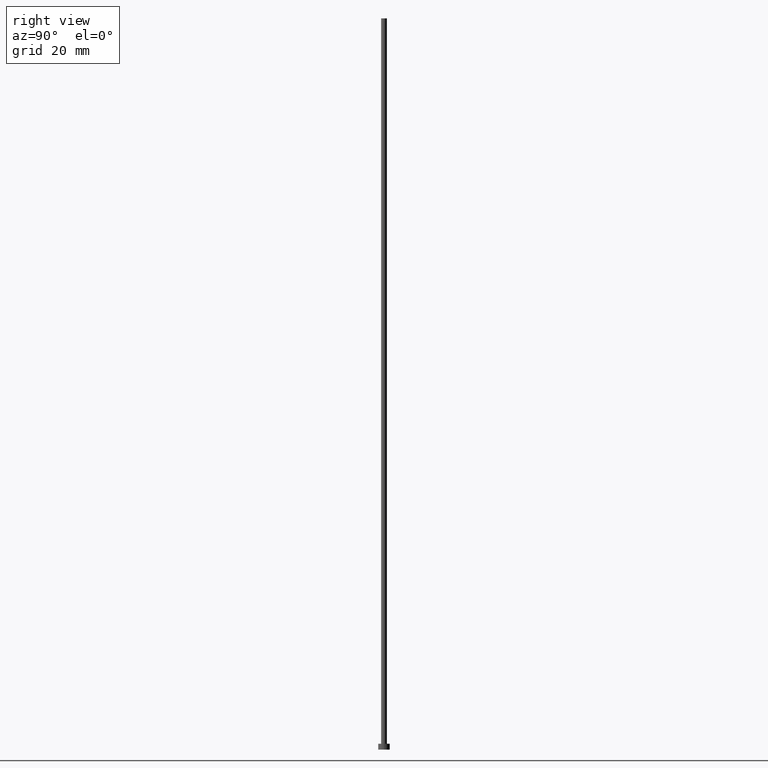
[diagram: clean part render]
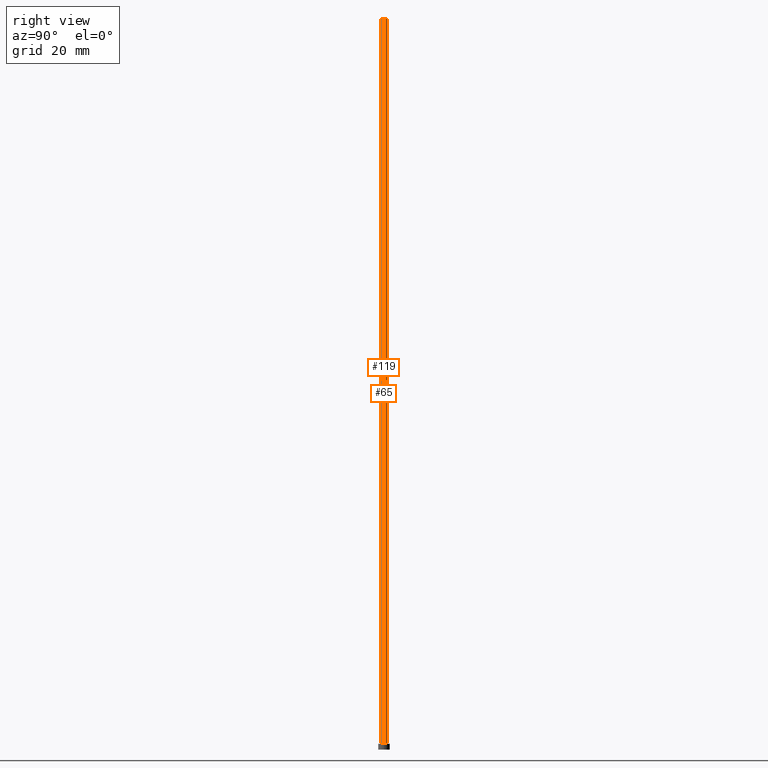
[diagram: same view with one multi-face feature highlighted, each face labeled with its STEP entity id]
A machine part, right view. The highlighted faces form ONE feature: a constant-radius fillet chain: 2 tangent blend faces with common blend radius 1 mm. The faces share edges in the B-rep.
Their STEP definitions:
[1] entity #65 (Cylinder):
#1 = CARTESIAN_POINT ( 'NONE',  ( 0.000000000000000000, 0.000000000000000000, 250.0000000000000000 ) ) ;
#6 = CIRCLE ( 'NONE', #130, 1.000000000000000000 ) ;
#14 = ORIENTED_EDGE ( 'NONE', *, *, #84, .T. ) ;
#17 = CYLINDRICAL_SURFACE ( 'NONE', #57, 1.000000000000000000 ) ;
#30 = ORIENTED_EDGE ( 'NONE', *, *, #235, .F. ) ;
#33 = DIRECTION ( 'NONE',  ( 1.000000000000000000, 0.000000000000000000, 0.000000000000000000 ) ) ;
#36 = DIRECTION ( 'NONE',  ( -0.000000000000000000, -0.000000000000000000, -1.000000000000000000 ) ) ;
#44 = DIRECTION ( 'NONE',  ( 1.000000000000000000, 0.000000000000000000, 0.000000000000000000 ) ) ;
#51 = LINE ( 'NONE', #97, #159 ) ;
#54 = DIRECTION ( 'NONE',  ( -0.000000000000000000, -0.000000000000000000, -1.000000000000000000 ) ) ;
#57 = AXIS2_PLACEMENT_3D ( 'NONE', #1, #36, #192 ) ;
#65 = ADVANCED_FACE ( 'NONE', ( #213 ), #17, .T. ) ;
#66 = ORIENTED_EDGE ( 'NONE', *, *, #80, .T. ) ;
#67 = VERTEX_POINT ( 'NONE', #253 ) ;
#78 = LINE ( 'NONE', #121, #149 ) ;
#80 = EDGE_CURVE ( 'NONE', #112, #114, #6, .T. ) ;
#83 = CARTESIAN_POINT ( 'NONE',  ( 0.000000000000000000, 0.000000000000000000, 250.0000000000000000 ) ) ;
#84 = EDGE_CURVE ( 'NONE', #91, #112, #78, .T. ) ;
#91 = VERTEX_POINT ( 'NONE', #154 ) ;
#97 = CARTESIAN_POINT ( 'NONE',  ( -1.000000000000000000, 0.000000000000000000, 250.0000000000000000 ) ) ;
#106 = DIRECTION ( 'NONE',  ( 0.000000000000000000, 0.000000000000000000, 1.000000000000000000 ) ) ;
#112 = VERTEX_POINT ( 'NONE', #137 ) ;
#114 = VERTEX_POINT ( 'NONE', #228 ) ;
#121 = CARTESIAN_POINT ( 'NONE',  ( 1.000000000000000000, 1.224646799147353207E-16, 250.0000000000000000 ) ) ;
#125 = AXIS2_PLACEMENT_3D ( 'NONE', #83, #106, #44 ) ;
#130 = AXIS2_PLACEMENT_3D ( 'NONE', #252, #230, #33 ) ;
#137 = CARTESIAN_POINT ( 'NONE',  ( 1.000000000000000000, 1.224646799147353207E-16, 2.000000000000000000 ) ) ;
#149 = VECTOR ( 'NONE', #54, 1000.000000000000000 ) ;
#152 = ORIENTED_EDGE ( 'NONE', *, *, #171, .F. ) ;
#154 = CARTESIAN_POINT ( 'NONE',  ( 1.000000000000000000, 1.224646799147353207E-16, 250.0000000000000000 ) ) ;
#159 = VECTOR ( 'NONE', #178, 1000.000000000000000 ) ;
#166 = EDGE_LOOP ( 'NONE', ( #30, #14, #66, #152 ) ) ;
#171 = EDGE_CURVE ( 'NONE', #67, #114, #51, .T. ) ;
#178 = DIRECTION ( 'NONE',  ( -0.000000000000000000, -0.000000000000000000, -1.000000000000000000 ) ) ;
#192 = DIRECTION ( 'NONE',  ( -1.000000000000000000, 0.000000000000000000, 0.000000000000000000 ) ) ;
#203 = CIRCLE ( 'NONE', #125, 1.000000000000000000 ) ;
#213 = FACE_OUTER_BOUND ( 'NONE', #166, .T. ) ;
#228 = CARTESIAN_POINT ( 'NONE',  ( -1.000000000000000000, 0.000000000000000000, 2.000000000000000000 ) ) ;
#230 = DIRECTION ( 'NONE',  ( 0.000000000000000000, 0.000000000000000000, 1.000000000000000000 ) ) ;
#235 = EDGE_CURVE ( 'NONE', #91, #67, #203, .T. ) ;
#252 = CARTESIAN_POINT ( 'NONE',  ( 0.000000000000000000, 0.000000000000000000, 2.000000000000000000 ) ) ;
#253 = CARTESIAN_POINT ( 'NONE',  ( -1.000000000000000000, 0.000000000000000000, 250.0000000000000000 ) ) ;
[2] entity #119 (Cylinder):
#8 = CIRCLE ( 'NONE', #129, 1.000000000000000000 ) ;
#24 = EDGE_CURVE ( 'NONE', #114, #112, #200, .T. ) ;
#35 = DIRECTION ( 'NONE',  ( -0.000000000000000000, -0.000000000000000000, -1.000000000000000000 ) ) ;
#39 = CARTESIAN_POINT ( 'NONE',  ( 0.000000000000000000, 0.000000000000000000, 250.0000000000000000 ) ) ;
#49 = EDGE_LOOP ( 'NONE', ( #206, #184, #187, #117 ) ) ;
#50 = CARTESIAN_POINT ( 'NONE',  ( 0.000000000000000000, 0.000000000000000000, 2.000000000000000000 ) ) ;
#51 = LINE ( 'NONE', #97, #159 ) ;
#53 = DIRECTION ( 'NONE',  ( -1.000000000000000000, 0.000000000000000000, 0.000000000000000000 ) ) ;
#54 = DIRECTION ( 'NONE',  ( -0.000000000000000000, -0.000000000000000000, -1.000000000000000000 ) ) ;
#67 = VERTEX_POINT ( 'NONE', #253 ) ;
#78 = LINE ( 'NONE', #121, #149 ) ;
#82 = AXIS2_PLACEMENT_3D ( 'NONE', #39, #35, #53 ) ;
#84 = EDGE_CURVE ( 'NONE', #91, #112, #78, .T. ) ;
#91 = VERTEX_POINT ( 'NONE', #154 ) ;
#97 = CARTESIAN_POINT ( 'NONE',  ( -1.000000000000000000, 0.000000000000000000, 250.0000000000000000 ) ) ;
#101 = DIRECTION ( 'NONE',  ( 1.000000000000000000, 0.000000000000000000, 0.000000000000000000 ) ) ;
#112 = VERTEX_POINT ( 'NONE', #137 ) ;
#114 = VERTEX_POINT ( 'NONE', #228 ) ;
#117 = ORIENTED_EDGE ( 'NONE', *, *, #24, .T. ) ;
#119 = ADVANCED_FACE ( 'NONE', ( #197 ), #232, .T. ) ;
#120 = CARTESIAN_POINT ( 'NONE',  ( 0.000000000000000000, 0.000000000000000000, 250.0000000000000000 ) ) ;
#121 = CARTESIAN_POINT ( 'NONE',  ( 1.000000000000000000, 1.224646799147353207E-16, 250.0000000000000000 ) ) ;
#123 = DIRECTION ( 'NONE',  ( 0.000000000000000000, 0.000000000000000000, 1.000000000000000000 ) ) ;
#129 = AXIS2_PLACEMENT_3D ( 'NONE', #120, #123, #101 ) ;
#134 = DIRECTION ( 'NONE',  ( 0.000000000000000000, 0.000000000000000000, 1.000000000000000000 ) ) ;
#137 = CARTESIAN_POINT ( 'NONE',  ( 1.000000000000000000, 1.224646799147353207E-16, 2.000000000000000000 ) ) ;
#148 = DIRECTION ( 'NONE',  ( 1.000000000000000000, 0.000000000000000000, 0.000000000000000000 ) ) ;
#149 = VECTOR ( 'NONE', #54, 1000.000000000000000 ) ;
#154 = CARTESIAN_POINT ( 'NONE',  ( 1.000000000000000000, 1.224646799147353207E-16, 250.0000000000000000 ) ) ;
#159 = VECTOR ( 'NONE', #178, 1000.000000000000000 ) ;
#171 = EDGE_CURVE ( 'NONE', #67, #114, #51, .T. ) ;
#178 = DIRECTION ( 'NONE',  ( -0.000000000000000000, -0.000000000000000000, -1.000000000000000000 ) ) ;
#184 = ORIENTED_EDGE ( 'NONE', *, *, #190, .F. ) ;
#187 = ORIENTED_EDGE ( 'NONE', *, *, #171, .T. ) ;
#190 = EDGE_CURVE ( 'NONE', #67, #91, #8, .T. ) ;
#197 = FACE_OUTER_BOUND ( 'NONE', #49, .T. ) ;
#200 = CIRCLE ( 'NONE', #240, 1.000000000000000000 ) ;
#206 = ORIENTED_EDGE ( 'NONE', *, *, #84, .F. ) ;
#228 = CARTESIAN_POINT ( 'NONE',  ( -1.000000000000000000, 0.000000000000000000, 2.000000000000000000 ) ) ;
#232 = CYLINDRICAL_SURFACE ( 'NONE', #82, 1.000000000000000000 ) ;
#240 = AXIS2_PLACEMENT_3D ( 'NONE', #50, #134, #148 ) ;
#253 = CARTESIAN_POINT ( 'NONE',  ( -1.000000000000000000, 0.000000000000000000, 250.0000000000000000 ) ) ;